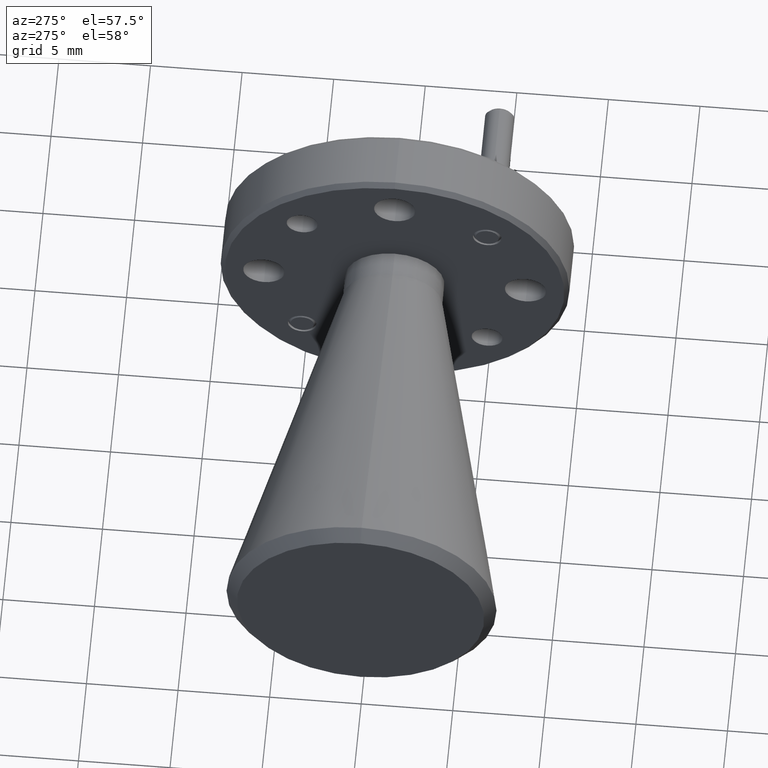
[diagram: clean part render]
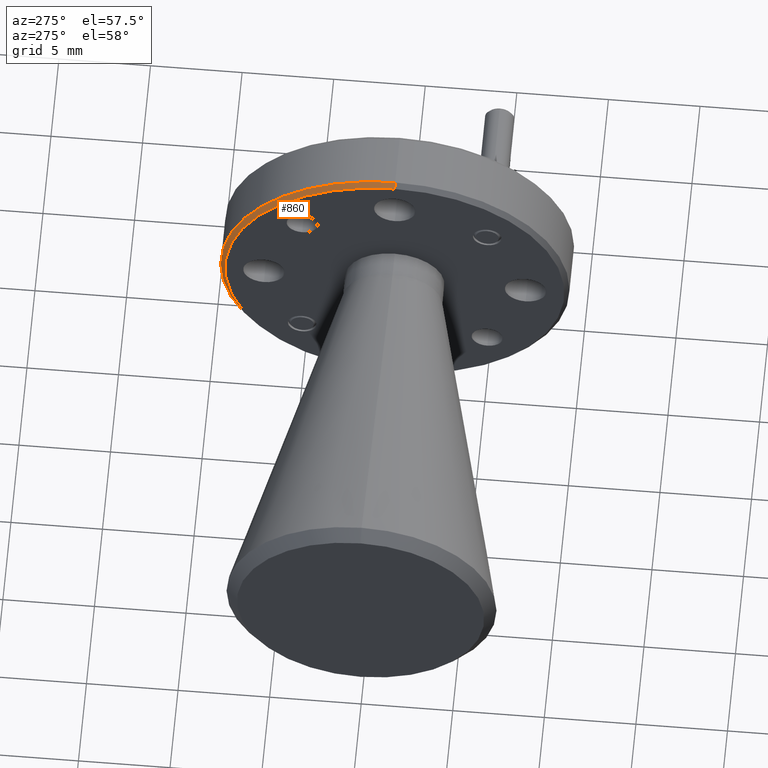
[diagram: same view with one face highlighted and labeled with its STEP entity id]
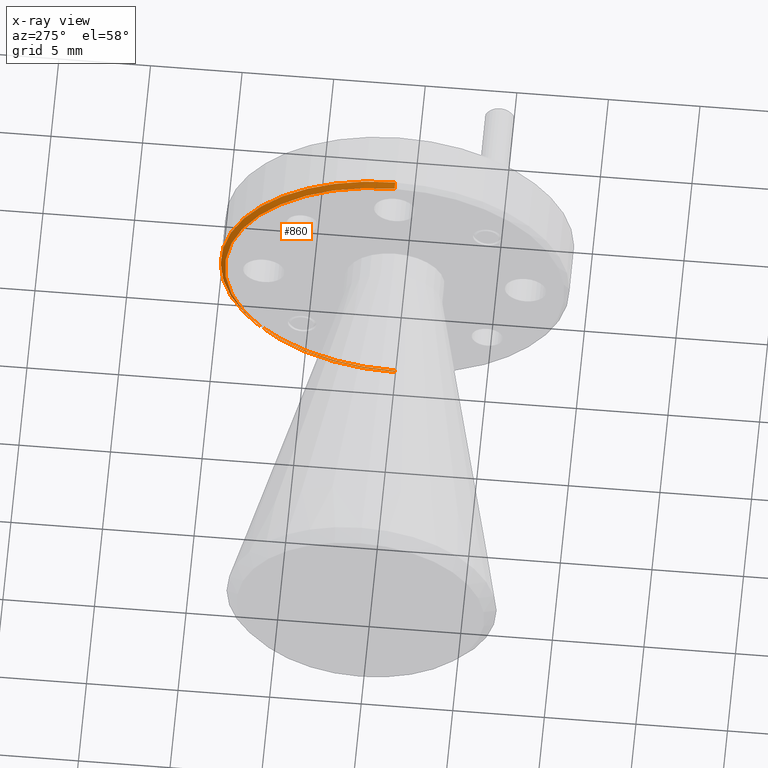
[diagram: x-ray of the same camera — body ghosted, the highlighted face saturated]
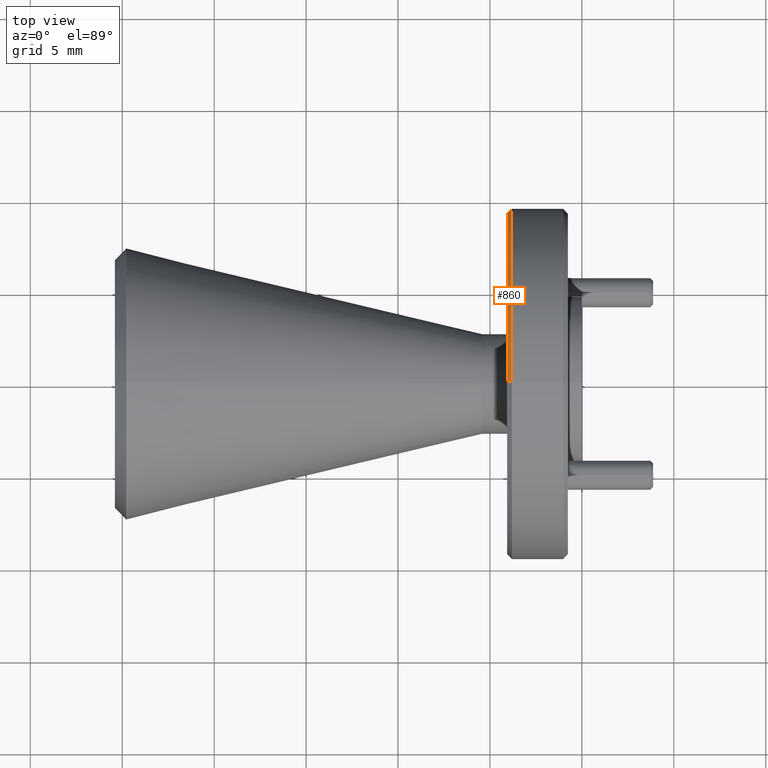
[diagram: same view with one face highlighted and labeled with its STEP entity id]
A machine part, auxiliary view. The second image highlights one B-rep face of the part: STEP entity #860.
The next image is the same camera in x-ray: the body ghosted, the highlighted face saturated — about 7% of this face is hidden behind the body in this view.
A second angle (top view) of the same face is appended — the face is thin or edge-on in the first view.
In plain terms, the highlighted conical surface has half-angle 45 deg.
Its self-contained STEP definition (entity closure, byte-faithful):
#3 = DIRECTION ( 'NONE',  ( -1.000000000000000000, 0.0000000000000000000, 0.0000000000000000000 ) ) ;
#108 = EDGE_CURVE ( 'NONE', #1573, #999, #436, .T. ) ;
#206 = DIRECTION ( 'NONE',  ( 0.0000000000000000000, 0.0000000000000000000, -1.000000000000000000 ) ) ;
#341 = ORIENTED_EDGE ( 'NONE', *, *, #1217, .F. ) ;
#343 = ORIENTED_EDGE ( 'NONE', *, *, #1169, .T. ) ;
#355 = DIRECTION ( 'NONE',  ( 1.000000000000000000, -0.0000000000000000000, -0.0000000000000000000 ) ) ;
#406 = AXIS2_PLACEMENT_3D ( 'NONE', #2157, #3, #1187 ) ;
#407 = VECTOR ( 'NONE', #737, 39.37007874015748100 ) ;
#436 = LINE ( 'NONE', #1479, #836 ) ;
#482 = CIRCLE ( 'NONE', #406, 0.3649999999999997700 ) ;
#530 = ORIENTED_EDGE ( 'NONE', *, *, #108, .F. ) ;
#737 = DIRECTION ( 'NONE',  ( 0.7071067811865426900, 8.659560562354990800E-017, 0.7071067811865523500 ) ) ;
#836 = VECTOR ( 'NONE', #2113, 39.37007874015748100 ) ;
#857 = LINE ( 'NONE', #1254, #407 ) ;
#860 = ADVANCED_FACE ( 'NONE', ( #1017 ), #2068, .T. ) ;
#999 = VERTEX_POINT ( 'NONE', #2088 ) ;
#1017 = FACE_OUTER_BOUND ( 'NONE', #1078, .T. ) ;
#1078 = EDGE_LOOP ( 'NONE', ( #341, #343, #2097, #530 ) ) ;
#1119 = CARTESIAN_POINT ( 'NONE',  ( -0.1600000000000000000, 0.0000000000000000000, -0.3649999999999997700 ) ) ;
#1169 = EDGE_CURVE ( 'NONE', #2004, #2133, #857, .T. ) ;
#1186 = CARTESIAN_POINT ( 'NONE',  ( -0.1600000000000000000, 4.531193156845206100E-017, 0.3649999999999997700 ) ) ;
#1187 = DIRECTION ( 'NONE',  ( 0.0000000000000000000, 0.0000000000000000000, 1.000000000000000000 ) ) ;
#1216 = DIRECTION ( 'NONE',  ( 1.000000000000000000, -0.0000000000000000000, -0.0000000000000000000 ) ) ;
#1217 = EDGE_CURVE ( 'NONE', #2004, #1573, #482, .T. ) ;
#1254 = CARTESIAN_POINT ( 'NONE',  ( -0.1499999999999999100, 4.592425496802575500E-017, 0.3750000000000000600 ) ) ;
#1279 = EDGE_CURVE ( 'NONE', #999, #2133, #1851, .T. ) ;
#1344 = CARTESIAN_POINT ( 'NONE',  ( -0.1499999999999999100, 0.0000000000000000000, 0.0000000000000000000 ) ) ;
#1349 = DIRECTION ( 'NONE',  ( 0.0000000000000000000, 0.0000000000000000000, 1.000000000000000000 ) ) ;
#1362 = CARTESIAN_POINT ( 'NONE',  ( -0.1499999999999999100, 0.0000000000000000000, 0.0000000000000000000 ) ) ;
#1479 = CARTESIAN_POINT ( 'NONE',  ( -0.1499999999999999100, 0.0000000000000000000, -0.3750000000000000600 ) ) ;
#1573 = VERTEX_POINT ( 'NONE', #1119 ) ;
#1851 = CIRCLE ( 'NONE', #2073, 0.3750000000000000600 ) ;
#1870 = CARTESIAN_POINT ( 'NONE',  ( -0.1499999999999999100, 4.592425496802575500E-017, 0.3750000000000000600 ) ) ;
#1964 = AXIS2_PLACEMENT_3D ( 'NONE', #1344, #1216, #206 ) ;
#2004 = VERTEX_POINT ( 'NONE', #1186 ) ;
#2068 = CONICAL_SURFACE ( 'NONE', #1964, 0.3750000000000000600, 0.7853981633974551600 ) ;
#2073 = AXIS2_PLACEMENT_3D ( 'NONE', #1362, #355, #1349 ) ;
#2088 = CARTESIAN_POINT ( 'NONE',  ( -0.1499999999999999100, 0.0000000000000000000, -0.3750000000000000600 ) ) ;
#2097 = ORIENTED_EDGE ( 'NONE', *, *, #1279, .F. ) ;
#2113 = DIRECTION ( 'NONE',  ( 0.7071067811865426900, 0.0000000000000000000, -0.7071067811865523500 ) ) ;
#2133 = VERTEX_POINT ( 'NONE', #1870 ) ;
#2157 = CARTESIAN_POINT ( 'NONE',  ( -0.1600000000000000000, 0.0000000000000000000, 0.0000000000000000000 ) ) ;